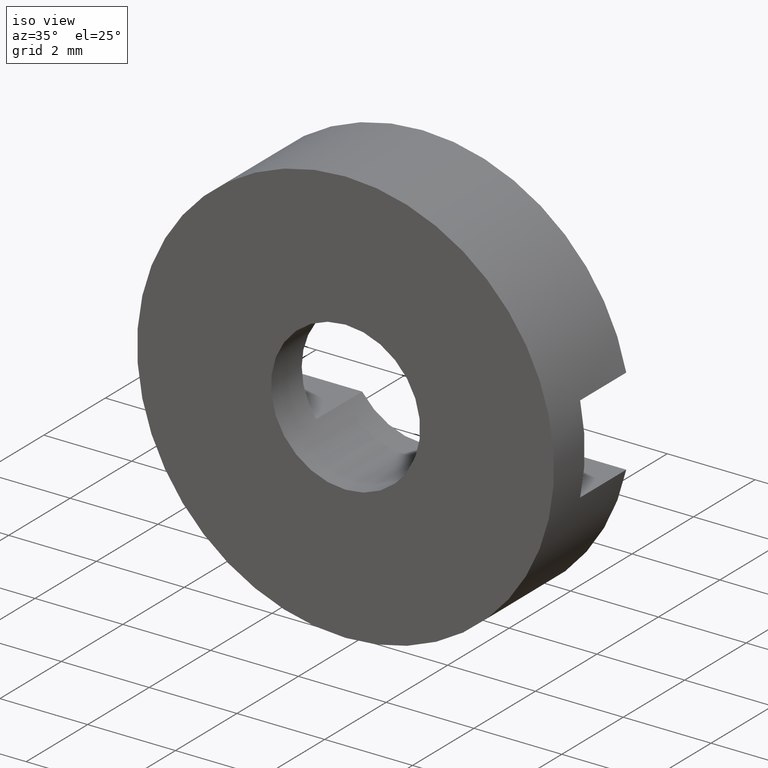
[diagram: clean part render]
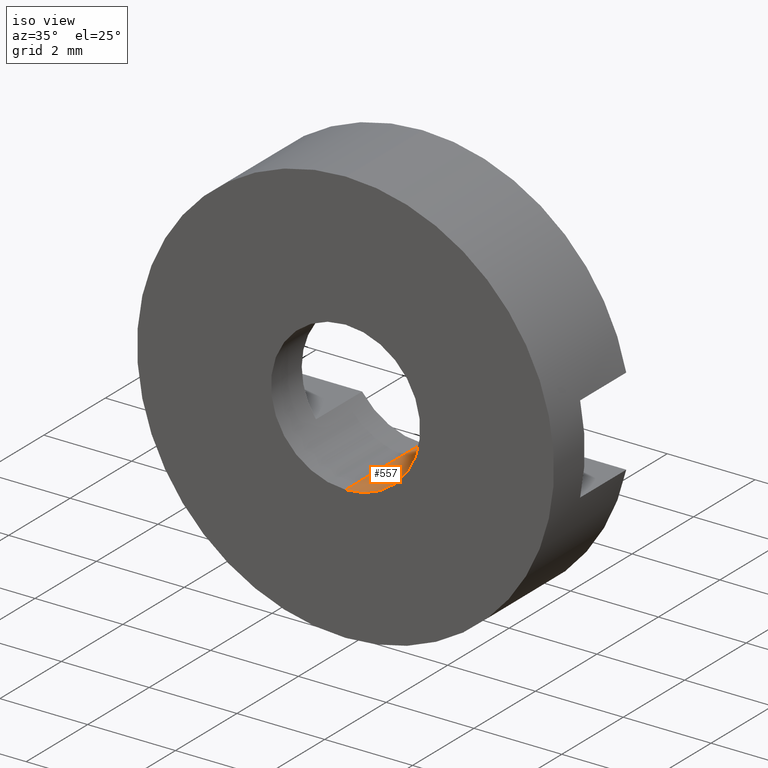
[diagram: same view with one face highlighted and labeled with its STEP entity id]
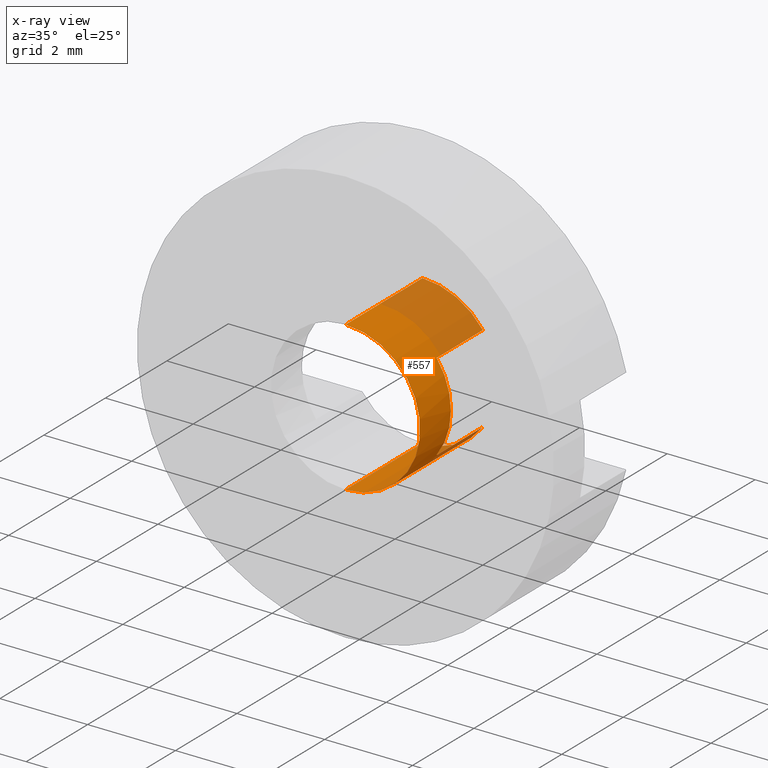
[diagram: x-ray of the same camera — body ghosted, the highlighted face saturated]
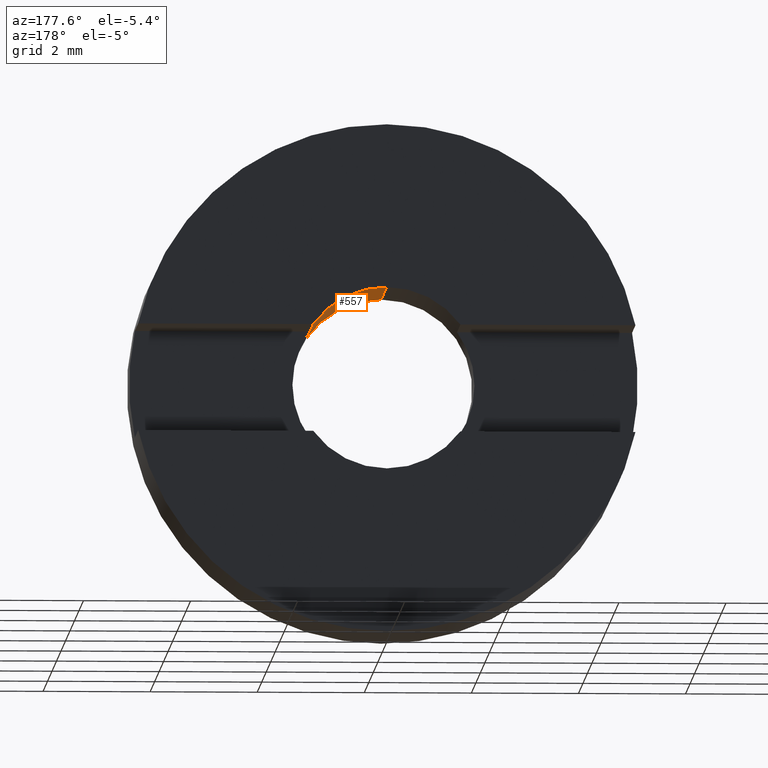
[diagram: same view with one face highlighted and labeled with its STEP entity id]
A machine part, iso view. The second image highlights one B-rep face of the part: STEP entity #557.
The next image is the same camera in x-ray: the body ghosted, the highlighted face saturated — about 35% of this face is hidden behind the body in this view.
A second angle (auxiliary view) of the same face is appended — the face is thin or edge-on in the first view.
In plain terms, the highlighted cylindrical surface (partial cylindrical patch) has radius 1.7 mm, axis along (-0, 1, -0).
Its self-contained STEP definition (entity closure, byte-faithful):
#16 = EDGE_CURVE ( 'NONE', #545, #57, #154, .T. ) ;
#22 = CARTESIAN_POINT ( 'NONE',  ( 2.081899558550509200E-016, -1.964249787179434000, -1.700000000000007300 ) ) ;
#25 = DIRECTION ( 'NONE',  ( 0.0000000000000000000, -1.000000000000000000, 0.0000000000000000000 ) ) ;
#32 = DIRECTION ( 'NONE',  ( 0.0000000000000000000, 0.0000000000000000000, 1.000000000000000000 ) ) ;
#35 = DIRECTION ( 'NONE',  ( -0.0000000000000000000, 1.000000000000000000, -0.0000000000000000000 ) ) ;
#39 = CIRCLE ( 'NONE', #471, 1.700000000000007300 ) ;
#54 = VECTOR ( 'NONE', #554, 1000.000000000000000 ) ;
#57 = VERTEX_POINT ( 'NONE', #568 ) ;
#58 = AXIS2_PLACEMENT_3D ( 'NONE', #119, #481, #209 ) ;
#80 = VECTOR ( 'NONE', #180, 1000.000000000000000 ) ;
#84 = EDGE_LOOP ( 'NONE', ( #190, #108, #415, #379, #399, #577, #460, #196 ) ) ;
#88 = FACE_OUTER_BOUND ( 'NONE', #84, .T. ) ;
#93 = VECTOR ( 'NONE', #25, 1000.000000000000000 ) ;
#101 = VERTEX_POINT ( 'NONE', #22 ) ;
#108 = ORIENTED_EDGE ( 'NONE', *, *, #527, .F. ) ;
#116 = VECTOR ( 'NONE', #35, 1000.000000000000000 ) ;
#119 = CARTESIAN_POINT ( 'NONE',  ( 0.0000000000000000000, -3.464249787179428400, 0.0000000000000000000 ) ) ;
#127 = CARTESIAN_POINT ( 'NONE',  ( 2.081899558550509200E-016, -4.464249787179428900, -1.700000000000007300 ) ) ;
#130 = CIRCLE ( 'NONE', #382, 1.700000000000007300 ) ;
#154 = CIRCLE ( 'NONE', #58, 1.700000000000007300 ) ;
#171 = VERTEX_POINT ( 'NONE', #490 ) ;
#180 = DIRECTION ( 'NONE',  ( -0.0000000000000000000, 1.000000000000000000, -0.0000000000000000000 ) ) ;
#190 = ORIENTED_EDGE ( 'NONE', *, *, #398, .F. ) ;
#193 = VERTEX_POINT ( 'NONE', #127 ) ;
#196 = ORIENTED_EDGE ( 'NONE', *, *, #562, .T. ) ;
#209 = DIRECTION ( 'NONE',  ( 0.0000000000000000000, 0.0000000000000000000, 1.000000000000000000 ) ) ;
#229 = CARTESIAN_POINT ( 'NONE',  ( 1.374772708486760900, 56.26084262701361600, -1.000000000000000000 ) ) ;
#253 = CARTESIAN_POINT ( 'NONE',  ( 1.374772708486760900, 56.26084262701361600, 1.000000000000000000 ) ) ;
#271 = DIRECTION ( 'NONE',  ( 0.0000000000000000000, 0.0000000000000000000, 1.000000000000000000 ) ) ;
#284 = LINE ( 'NONE', #253, #93 ) ;
#288 = EDGE_CURVE ( 'NONE', #472, #57, #284, .T. ) ;
#292 = CIRCLE ( 'NONE', #328, 1.700000000000007300 ) ;
#302 = CARTESIAN_POINT ( 'NONE',  ( 0.0000000000000000000, -4.464249787179428900, 1.700000000000007300 ) ) ;
#307 = VERTEX_POINT ( 'NONE', #302 ) ;
#310 = DIRECTION ( 'NONE',  ( 0.0000000000000000000, 0.0000000000000000000, 1.000000000000000000 ) ) ;
#314 = DIRECTION ( 'NONE',  ( -0.0000000000000000000, 1.000000000000000000, -0.0000000000000000000 ) ) ;
#322 = EDGE_CURVE ( 'NONE', #171, #472, #39, .T. ) ;
#327 = LINE ( 'NONE', #502, #80 ) ;
#328 = AXIS2_PLACEMENT_3D ( 'NONE', #443, #314, #450 ) ;
#349 = CARTESIAN_POINT ( 'NONE',  ( 0.0000000000000000000, 56.26084262701361600, 0.0000000000000000000 ) ) ;
#352 = LINE ( 'NONE', #229, #116 ) ;
#379 = ORIENTED_EDGE ( 'NONE', *, *, #322, .T. ) ;
#382 = AXIS2_PLACEMENT_3D ( 'NONE', #392, #448, #310 ) ;
#388 = CARTESIAN_POINT ( 'NONE',  ( 1.374772708486760900, -3.464249787179428400, -0.9999999999999995600 ) ) ;
#392 = CARTESIAN_POINT ( 'NONE',  ( 0.0000000000000000000, -4.464249787179428900, 0.0000000000000000000 ) ) ;
#398 = EDGE_CURVE ( 'NONE', #193, #101, #327, .T. ) ;
#399 = ORIENTED_EDGE ( 'NONE', *, *, #288, .T. ) ;
#406 = DIRECTION ( 'NONE',  ( -0.0000000000000000000, 1.000000000000000000, -0.0000000000000000000 ) ) ;
#407 = VERTEX_POINT ( 'NONE', #446 ) ;
#410 = CYLINDRICAL_SURFACE ( 'NONE', #462, 1.700000000000007300 ) ;
#415 = ORIENTED_EDGE ( 'NONE', *, *, #445, .T. ) ;
#443 = CARTESIAN_POINT ( 'NONE',  ( 0.0000000000000000000, -1.964249787179434000, 0.0000000000000000000 ) ) ;
#445 = EDGE_CURVE ( 'NONE', #307, #171, #475, .T. ) ;
#446 = CARTESIAN_POINT ( 'NONE',  ( 1.374772708486760900, -1.964249787179434000, -0.9999999999999995600 ) ) ;
#448 = DIRECTION ( 'NONE',  ( -0.0000000000000000000, 1.000000000000000000, -0.0000000000000000000 ) ) ;
#450 = DIRECTION ( 'NONE',  ( 0.0000000000000000000, 0.0000000000000000000, 1.000000000000000000 ) ) ;
#455 = CARTESIAN_POINT ( 'NONE',  ( 0.0000000000000000000, 56.26084262701361600, 1.700000000000007300 ) ) ;
#460 = ORIENTED_EDGE ( 'NONE', *, *, #548, .T. ) ;
#462 = AXIS2_PLACEMENT_3D ( 'NONE', #349, #586, #32 ) ;
#471 = AXIS2_PLACEMENT_3D ( 'NONE', #587, #406, #271 ) ;
#472 = VERTEX_POINT ( 'NONE', #539 ) ;
#475 = LINE ( 'NONE', #455, #54 ) ;
#481 = DIRECTION ( 'NONE',  ( -0.0000000000000000000, -1.000000000000000000, -0.0000000000000000000 ) ) ;
#490 = CARTESIAN_POINT ( 'NONE',  ( 0.0000000000000000000, -1.964249787179434000, 1.700000000000007300 ) ) ;
#502 = CARTESIAN_POINT ( 'NONE',  ( 2.081899558550509200E-016, 56.26084262701361600, -1.700000000000007300 ) ) ;
#527 = EDGE_CURVE ( 'NONE', #307, #193, #130, .T. ) ;
#539 = CARTESIAN_POINT ( 'NONE',  ( 1.374772708486760900, -1.964249787179434000, 0.9999999999999995600 ) ) ;
#545 = VERTEX_POINT ( 'NONE', #388 ) ;
#548 = EDGE_CURVE ( 'NONE', #545, #407, #352, .T. ) ;
#554 = DIRECTION ( 'NONE',  ( -0.0000000000000000000, 1.000000000000000000, -0.0000000000000000000 ) ) ;
#557 = ADVANCED_FACE ( 'NONE', ( #88 ), #410, .F. ) ;
#562 = EDGE_CURVE ( 'NONE', #407, #101, #292, .T. ) ;
#568 = CARTESIAN_POINT ( 'NONE',  ( 1.374772708486760900, -3.464249787179428400, 0.9999999999999995600 ) ) ;
#577 = ORIENTED_EDGE ( 'NONE', *, *, #16, .F. ) ;
#586 = DIRECTION ( 'NONE',  ( -0.0000000000000000000, 1.000000000000000000, -0.0000000000000000000 ) ) ;
#587 = CARTESIAN_POINT ( 'NONE',  ( 0.0000000000000000000, -1.964249787179434000, 0.0000000000000000000 ) ) ;